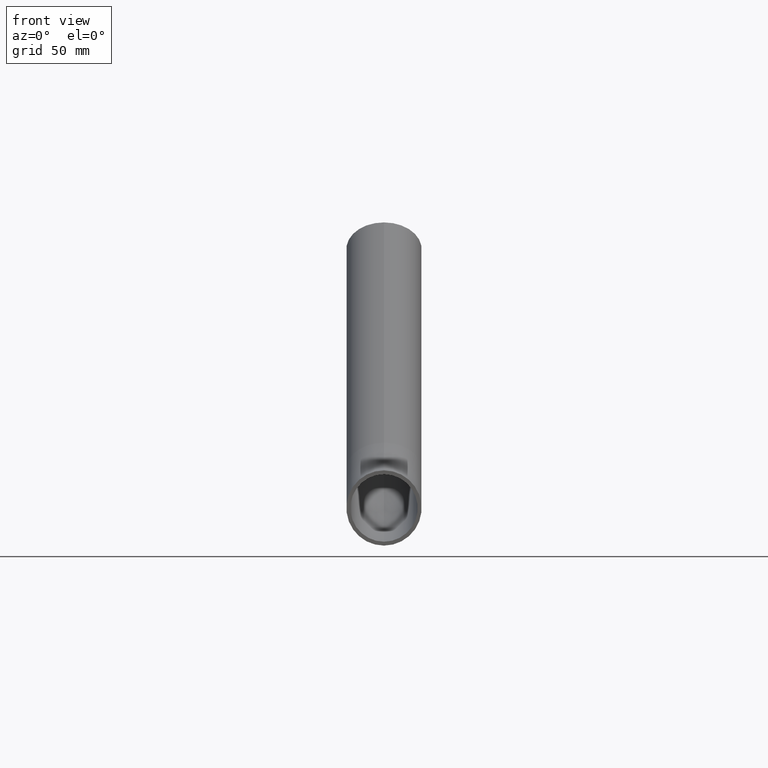
[diagram: clean part render]
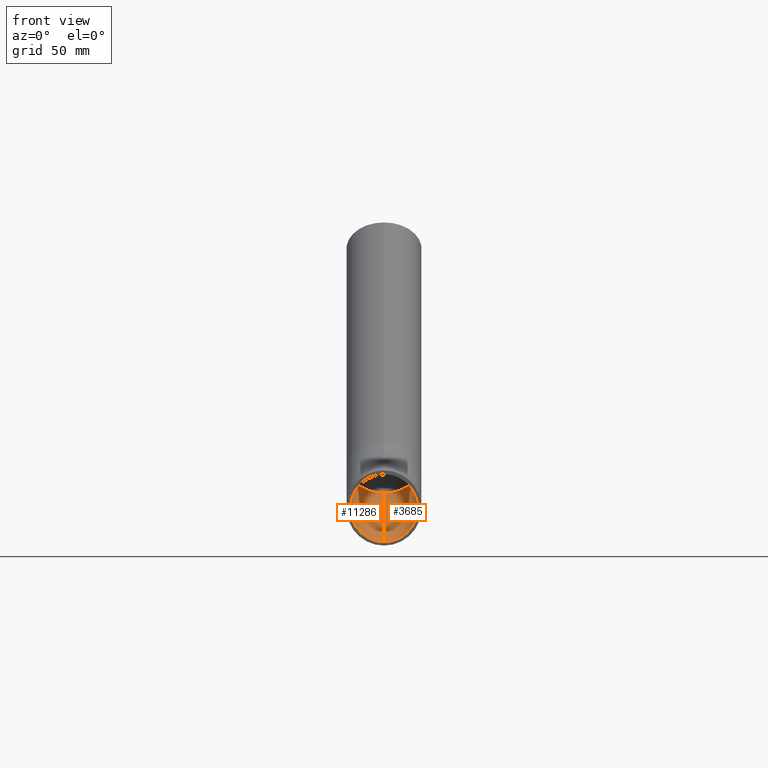
[diagram: same view with one multi-face feature highlighted, each face labeled with its STEP entity id]
A machine part, front view. The highlighted faces form ONE feature: a constant-radius fillet chain: 2 tangent blend faces with common blend radius 21.65 mm. The faces share edges in the B-rep.
Their STEP definitions:
[1] entity #3685 (Torus):
#158 = EDGE_CURVE ( 'NONE', #7094, #5167, #8440, .T. ) ;
#928 = CARTESIAN_POINT ( 'NONE',  ( -2.651360320154019700E-015, 200.0000000000000000, 85.00000000000000000 ) ) ;
#986 = AXIS2_PLACEMENT_3D ( 'NONE', #1414, #5066, #3102 ) ;
#1398 = EDGE_CURVE ( 'NONE', #5167, #7949, #1736, .T. ) ;
#1414 = CARTESIAN_POINT ( 'NONE',  ( 0.0000000000000000000, 200.0000000000000000, 0.0000000000000000000 ) ) ;
#1736 = CIRCLE ( 'NONE', #9697, 21.64999999999999900 ) ;
#2507 = CARTESIAN_POINT ( 'NONE',  ( 0.0000000000000000000, 200.0000000000000000, -21.65000000000000200 ) ) ;
#2873 = EDGE_CURVE ( 'NONE', #6573, #7949, #8453, .T. ) ;
#2890 = ORIENTED_EDGE ( 'NONE', *, *, #158, .T. ) ;
#3102 = DIRECTION ( 'NONE',  ( 0.0000000000000000000, 0.0000000000000000000, 1.000000000000000000 ) ) ;
#3259 = AXIS2_PLACEMENT_3D ( 'NONE', #8000, #8886, #3518 ) ;
#3518 = DIRECTION ( 'NONE',  ( 0.0000000000000000000, 0.0000000000000000000, -1.000000000000000000 ) ) ;
#3685 = ADVANCED_FACE ( 'NONE', ( #4247 ), #4405, .F. ) ;
#3778 = CIRCLE ( 'NONE', #986, 21.65000000000000200 ) ;
#4101 = DIRECTION ( 'NONE',  ( 1.000000000000000000, 0.0000000000000000000, 0.0000000000000000000 ) ) ;
#4247 = FACE_OUTER_BOUND ( 'NONE', #4683, .T. ) ;
#4405 = TOROIDAL_SURFACE ( 'NONE', #3259, 85.00000000000000000, 21.65000000000000200 ) ;
#4683 = EDGE_LOOP ( 'NONE', ( #10221, #9801, #2890, #6368 ) ) ;
#5019 = DIRECTION ( 'NONE',  ( 0.0000000000000000000, 0.0000000000000000000, -1.000000000000000000 ) ) ;
#5066 = DIRECTION ( 'NONE',  ( 0.0000000000000000000, 1.000000000000000000, 0.0000000000000000000 ) ) ;
#5167 = VERTEX_POINT ( 'NONE', #5794 ) ;
#5284 = CARTESIAN_POINT ( 'NONE',  ( 0.0000000000000000000, 260.1040764008566300, 24.89592359914358300 ) ) ;
#5384 = DIRECTION ( 'NONE',  ( 0.0000000000000000000, 0.0000000000000000000, -1.000000000000000000 ) ) ;
#5674 = EDGE_CURVE ( 'NONE', #7094, #6573, #3778, .T. ) ;
#5794 = CARTESIAN_POINT ( 'NONE',  ( 0.0000000000000000000, 244.7952145881678500, 40.20478541183230400 ) ) ;
#6178 = DIRECTION ( 'NONE',  ( 0.0000000000000000000, 0.7071067811865460200, 0.7071067811865490200 ) ) ;
#6368 = ORIENTED_EDGE ( 'NONE', *, *, #1398, .T. ) ;
#6573 = VERTEX_POINT ( 'NONE', #2507 ) ;
#6959 = CARTESIAN_POINT ( 'NONE',  ( 2.651360320154019700E-015, 275.4129382135453700, 9.587061786454873100 ) ) ;
#7094 = VERTEX_POINT ( 'NONE', #10179 ) ;
#7337 = AXIS2_PLACEMENT_3D ( 'NONE', #928, #8839, #5384 ) ;
#7860 = AXIS2_PLACEMENT_3D ( 'NONE', #8647, #4101, #5019 ) ;
#7949 = VERTEX_POINT ( 'NONE', #6959 ) ;
#7965 = DIRECTION ( 'NONE',  ( 0.0000000000000000000, -0.7071067811865490200, 0.7071067811865461300 ) ) ;
#8000 = CARTESIAN_POINT ( 'NONE',  ( 0.0000000000000000000, 200.0000000000000000, 85.00000000000000000 ) ) ;
#8440 = CIRCLE ( 'NONE', #7337, 63.35000000000000100 ) ;
#8453 = CIRCLE ( 'NONE', #7860, 106.6500000000000100 ) ;
#8647 = CARTESIAN_POINT ( 'NONE',  ( 0.0000000000000000000, 200.0000000000000000, 85.00000000000000000 ) ) ;
#8839 = DIRECTION ( 'NONE',  ( 1.000000000000000000, 0.0000000000000000000, 0.0000000000000000000 ) ) ;
#8886 = DIRECTION ( 'NONE',  ( 1.000000000000000000, 0.0000000000000000000, 0.0000000000000000000 ) ) ;
#9697 = AXIS2_PLACEMENT_3D ( 'NONE', #5284, #6178, #7965 ) ;
#9801 = ORIENTED_EDGE ( 'NONE', *, *, #5674, .F. ) ;
#10179 = CARTESIAN_POINT ( 'NONE',  ( 2.651360320154019700E-015, 200.0000000000000000, 21.65000000000000200 ) ) ;
#10221 = ORIENTED_EDGE ( 'NONE', *, *, #2873, .F. ) ;
[2] entity #11286 (Torus):
#158 = EDGE_CURVE ( 'NONE', #7094, #5167, #8440, .T. ) ;
#928 = CARTESIAN_POINT ( 'NONE',  ( -2.651360320154019700E-015, 200.0000000000000000, 85.00000000000000000 ) ) ;
#969 = DIRECTION ( 'NONE',  ( 0.0000000000000000000, -0.7071067811865490200, 0.7071067811865461300 ) ) ;
#1844 = ORIENTED_EDGE ( 'NONE', *, *, #10061, .T. ) ;
#1987 = EDGE_LOOP ( 'NONE', ( #7673, #11333, #1844, #6183 ) ) ;
#2090 = AXIS2_PLACEMENT_3D ( 'NONE', #6297, #8190, #9843 ) ;
#2314 = AXIS2_PLACEMENT_3D ( 'NONE', #6337, #9913, #969 ) ;
#2507 = CARTESIAN_POINT ( 'NONE',  ( 0.0000000000000000000, 200.0000000000000000, -21.65000000000000200 ) ) ;
#2873 = EDGE_CURVE ( 'NONE', #6573, #7949, #8453, .T. ) ;
#2978 = AXIS2_PLACEMENT_3D ( 'NONE', #5655, #6435, #10008 ) ;
#3757 = EDGE_CURVE ( 'NONE', #6573, #7094, #7452, .T. ) ;
#4101 = DIRECTION ( 'NONE',  ( 1.000000000000000000, 0.0000000000000000000, 0.0000000000000000000 ) ) ;
#5019 = DIRECTION ( 'NONE',  ( 0.0000000000000000000, 0.0000000000000000000, -1.000000000000000000 ) ) ;
#5167 = VERTEX_POINT ( 'NONE', #5794 ) ;
#5384 = DIRECTION ( 'NONE',  ( 0.0000000000000000000, 0.0000000000000000000, -1.000000000000000000 ) ) ;
#5655 = CARTESIAN_POINT ( 'NONE',  ( 0.0000000000000000000, 200.0000000000000000, 85.00000000000000000 ) ) ;
#5794 = CARTESIAN_POINT ( 'NONE',  ( 0.0000000000000000000, 244.7952145881678500, 40.20478541183230400 ) ) ;
#6183 = ORIENTED_EDGE ( 'NONE', *, *, #158, .F. ) ;
#6297 = CARTESIAN_POINT ( 'NONE',  ( 0.0000000000000000000, 200.0000000000000000, 0.0000000000000000000 ) ) ;
#6337 = CARTESIAN_POINT ( 'NONE',  ( 0.0000000000000000000, 260.1040764008566300, 24.89592359914358300 ) ) ;
#6435 = DIRECTION ( 'NONE',  ( 1.000000000000000000, 0.0000000000000000000, 0.0000000000000000000 ) ) ;
#6573 = VERTEX_POINT ( 'NONE', #2507 ) ;
#6959 = CARTESIAN_POINT ( 'NONE',  ( 2.651360320154019700E-015, 275.4129382135453700, 9.587061786454873100 ) ) ;
#7094 = VERTEX_POINT ( 'NONE', #10179 ) ;
#7337 = AXIS2_PLACEMENT_3D ( 'NONE', #928, #8839, #5384 ) ;
#7452 = CIRCLE ( 'NONE', #2090, 21.65000000000000200 ) ;
#7673 = ORIENTED_EDGE ( 'NONE', *, *, #3757, .F. ) ;
#7822 = CIRCLE ( 'NONE', #2314, 21.64999999999999900 ) ;
#7860 = AXIS2_PLACEMENT_3D ( 'NONE', #8647, #4101, #5019 ) ;
#7949 = VERTEX_POINT ( 'NONE', #6959 ) ;
#8190 = DIRECTION ( 'NONE',  ( 0.0000000000000000000, 1.000000000000000000, 0.0000000000000000000 ) ) ;
#8225 = FACE_OUTER_BOUND ( 'NONE', #1987, .T. ) ;
#8440 = CIRCLE ( 'NONE', #7337, 63.35000000000000100 ) ;
#8453 = CIRCLE ( 'NONE', #7860, 106.6500000000000100 ) ;
#8647 = CARTESIAN_POINT ( 'NONE',  ( 0.0000000000000000000, 200.0000000000000000, 85.00000000000000000 ) ) ;
#8839 = DIRECTION ( 'NONE',  ( 1.000000000000000000, 0.0000000000000000000, 0.0000000000000000000 ) ) ;
#9843 = DIRECTION ( 'NONE',  ( 0.0000000000000000000, 0.0000000000000000000, 1.000000000000000000 ) ) ;
#9913 = DIRECTION ( 'NONE',  ( 0.0000000000000000000, 0.7071067811865460200, 0.7071067811865490200 ) ) ;
#10008 = DIRECTION ( 'NONE',  ( 0.0000000000000000000, 0.0000000000000000000, -1.000000000000000000 ) ) ;
#10061 = EDGE_CURVE ( 'NONE', #7949, #5167, #7822, .T. ) ;
#10179 = CARTESIAN_POINT ( 'NONE',  ( 2.651360320154019700E-015, 200.0000000000000000, 21.65000000000000200 ) ) ;
#10253 = TOROIDAL_SURFACE ( 'NONE', #2978, 85.00000000000000000, 21.65000000000000200 ) ;
#11286 = ADVANCED_FACE ( 'NONE', ( #8225 ), #10253, .F. ) ;
#11333 = ORIENTED_EDGE ( 'NONE', *, *, #2873, .T. ) ;